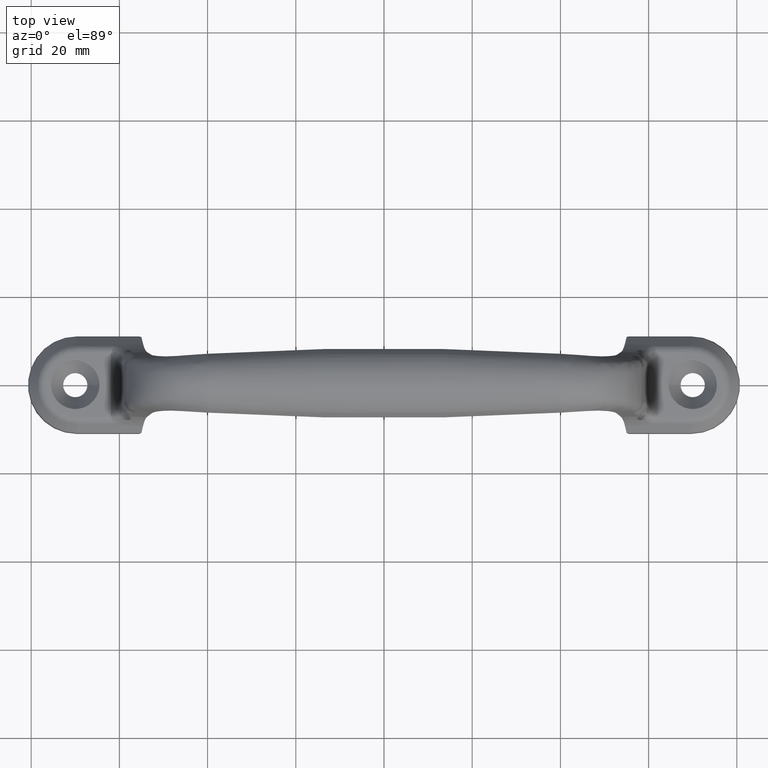
[diagram: clean part render]
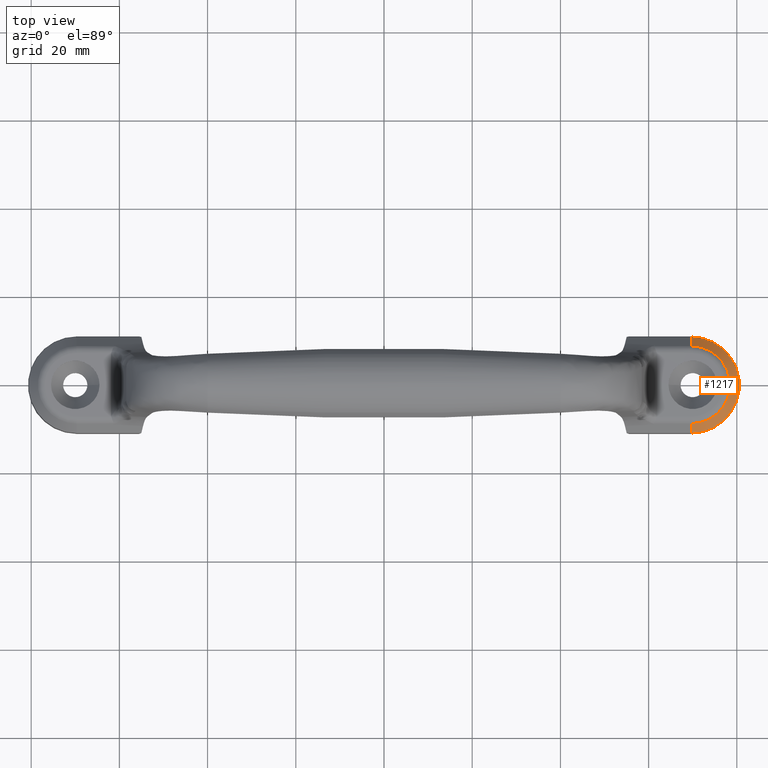
[diagram: same view with one face highlighted and labeled with its STEP entity id]
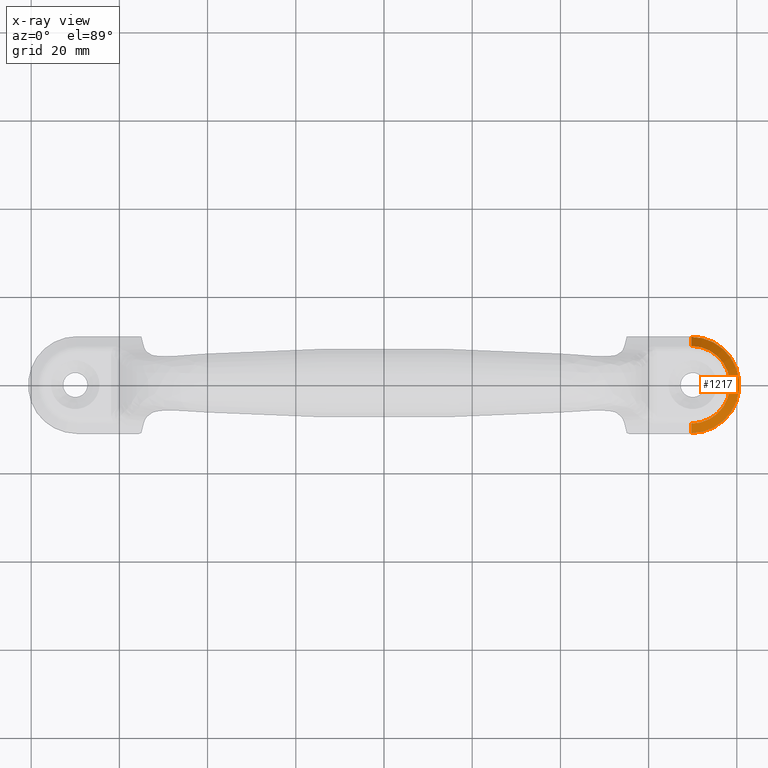
[diagram: x-ray of the same camera — body ghosted, the highlighted face saturated]
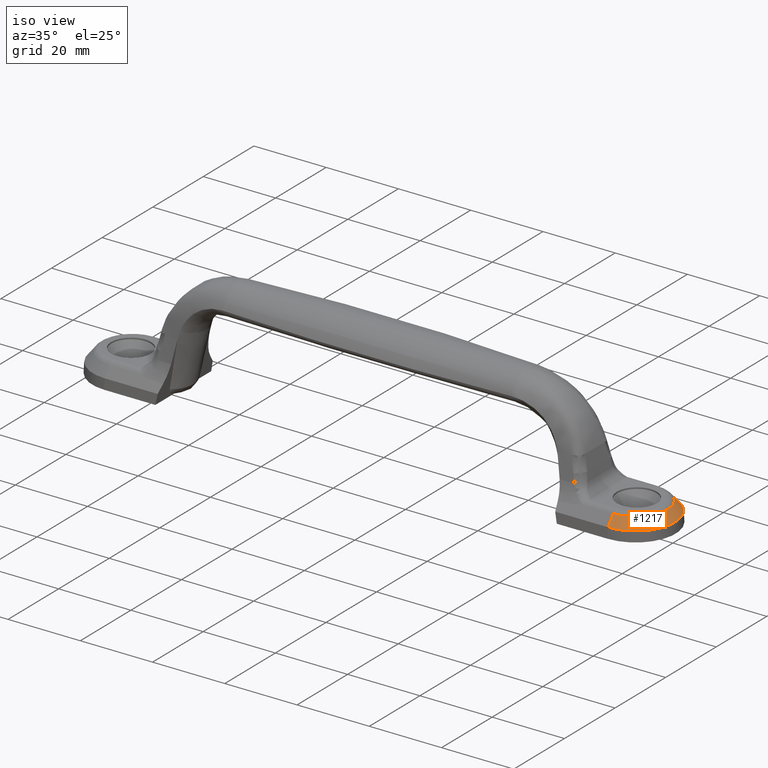
[diagram: same view with one face highlighted and labeled with its STEP entity id]
A machine part, top view. The second image highlights one B-rep face of the part: STEP entity #1217.
The next image is the same camera in x-ray: the body ghosted, the highlighted face saturated — about 0% of this face is hidden behind the body in this view.
A second angle (iso view) of the same face is appended — the face is thin or edge-on in the first view.
In plain terms, the highlighted conical surface has half-angle 38.66 deg.
Its self-contained STEP definition (entity closure, byte-faithful):
#17=CONICAL_SURFACE('',#1278,10.691996428076,38.6598082540903);
#48=LINE('',#3332,#89);
#54=LINE('',#3681,#95);
#89=VECTOR('',#1343,3.36087484230634);
#95=VECTOR('',#1355,3.36087716539139);
#151=CIRCLE('',#1279,8.80242543916425);
#152=CIRCLE('',#1280,10.9019487601774);
#202=FACE_OUTER_BOUND('',#276,.T.);
#276=EDGE_LOOP('',(#916,#917,#918,#919));
#496=VERTEX_POINT('',#3329);
#497=VERTEX_POINT('',#3331);
#516=VERTEX_POINT('',#3678);
#517=VERTEX_POINT('',#3680);
#637=EDGE_CURVE('',#497,#496,#48,.T.);
#667=EDGE_CURVE('',#516,#517,#54,.T.);
#678=EDGE_CURVE('',#496,#517,#151,.T.);
#679=EDGE_CURVE('',#516,#497,#152,.T.);
#916=ORIENTED_EDGE('',*,*,#637,.T.);
#917=ORIENTED_EDGE('',*,*,#678,.T.);
#918=ORIENTED_EDGE('',*,*,#667,.F.);
#919=ORIENTED_EDGE('',*,*,#679,.T.);
#1217=ADVANCED_FACE('',(#202),#17,.T.);
#1278=AXIS2_PLACEMENT_3D('',#3754,#1366,#1367);
#1279=AXIS2_PLACEMENT_3D('',#3755,#1368,#1369);
#1280=AXIS2_PLACEMENT_3D('',#3756,#1370,#1371);
#1343=DIRECTION('',(0.,-0.624695047554418,0.780868809443035));
#1355=DIRECTION('',(0.,0.624695047554414,0.780868809443039));
#1366=DIRECTION('center_axis',(-4.48073208470513E-16,-1.01250711075767E-14,
-1.));
#1367=DIRECTION('ref_axis',(0.219512195121952,0.975609756097561,-9.9764756873001E-15));
#1368=DIRECTION('center_axis',(-2.52253888953263E-16,0.,-1.));
#1369=DIRECTION('ref_axis',(2.0180311116261E-15,-1.,0.));
#1370=DIRECTION('center_axis',(1.01837116376897E-16,0.,1.));
#1371=DIRECTION('ref_axis',(2.44409079304553E-15,1.,0.));
#3329=CARTESIAN_POINT('',(69.6643585288094,68.8702105824292,5.44938828064016));
#3331=CARTESIAN_POINT('',(69.6643585288094,70.9697324518695,2.82498594384241));
#3332=CARTESIAN_POINT('',(69.6643585288094,70.9697324518695,2.82498594384241));
#3678=CARTESIAN_POINT('',(69.6643585288094,49.1658349315147,2.82498594384242));
#3680=CARTESIAN_POINT('',(69.6643585288094,51.2653582521735,5.44939009466586));
#3681=CARTESIAN_POINT('',(69.6643585288094,49.1658349315147,2.82498594384242));
#3754=CARTESIAN_POINT('Origin',(69.6643585288094,60.0677836916922,3.08742635896916));
#3755=CARTESIAN_POINT('Origin',(69.6643585288094,60.0677836916922,5.44939009510884));
#3756=CARTESIAN_POINT('Origin',(69.6643585288094,60.0677836916921,2.82498594384241));